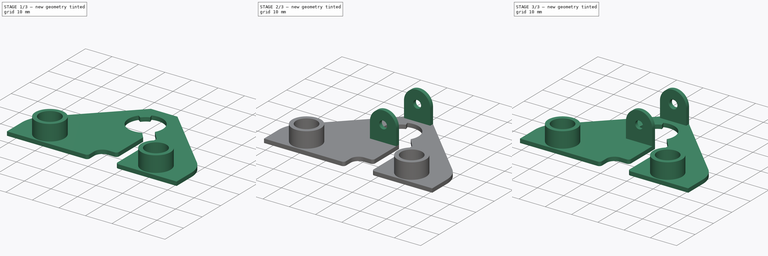
[diagram: build sequence overview — one tinted view per stage of 3, left to right]
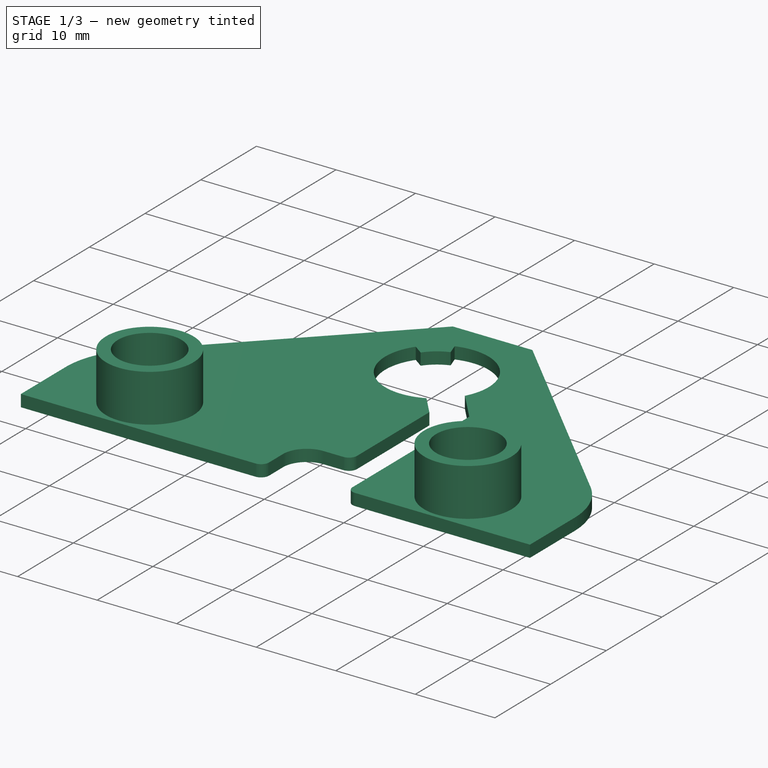
[diagram: stage 1 of 3 — iso view after this stage's code; geometry added in this stage tinted green]
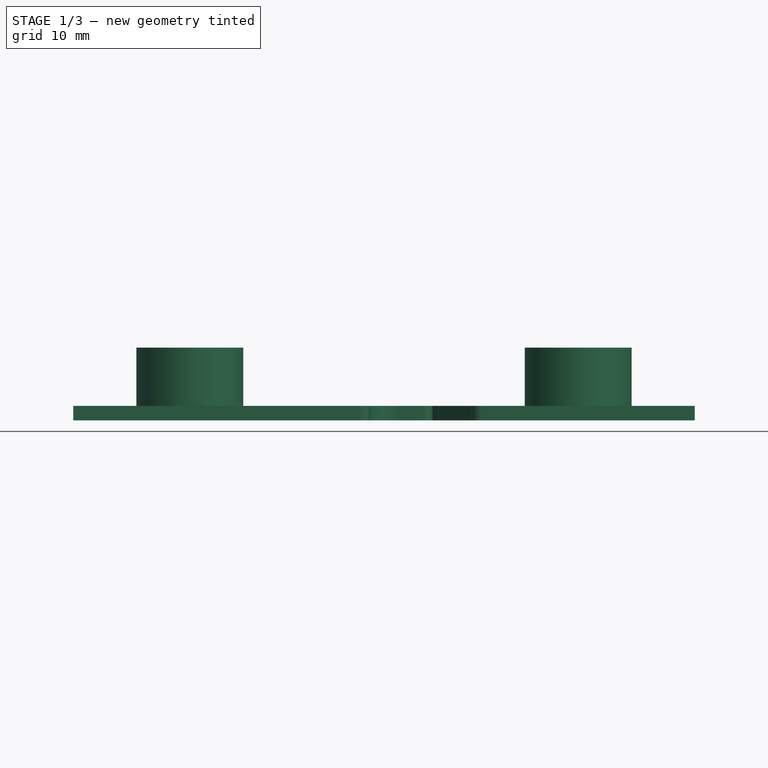
[diagram: stage 1 of 3 — front view after this stage's code; geometry added in this stage tinted green]
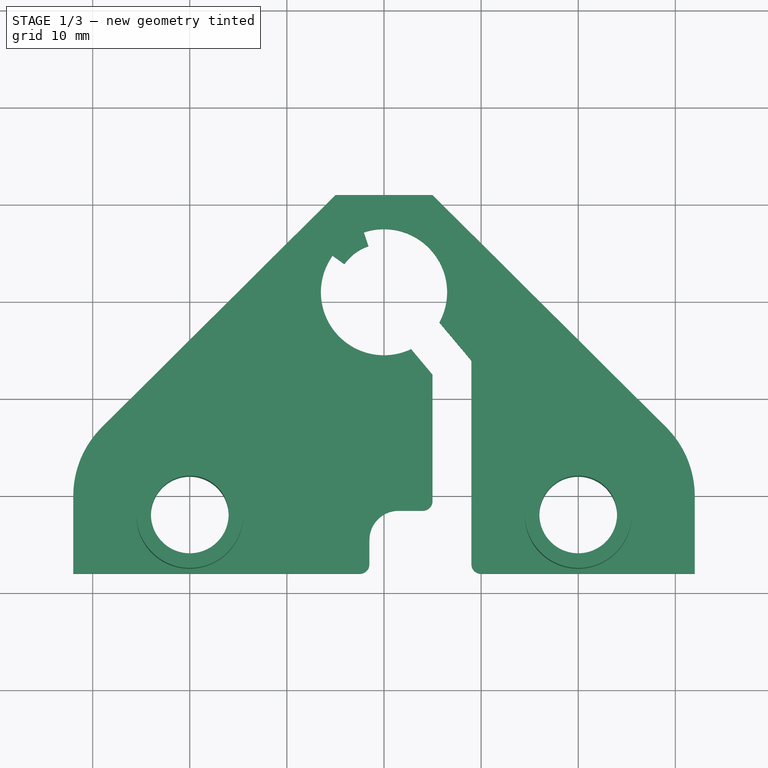
[diagram: stage 1 of 3 — top view after this stage's code; geometry added in this stage tinted green]
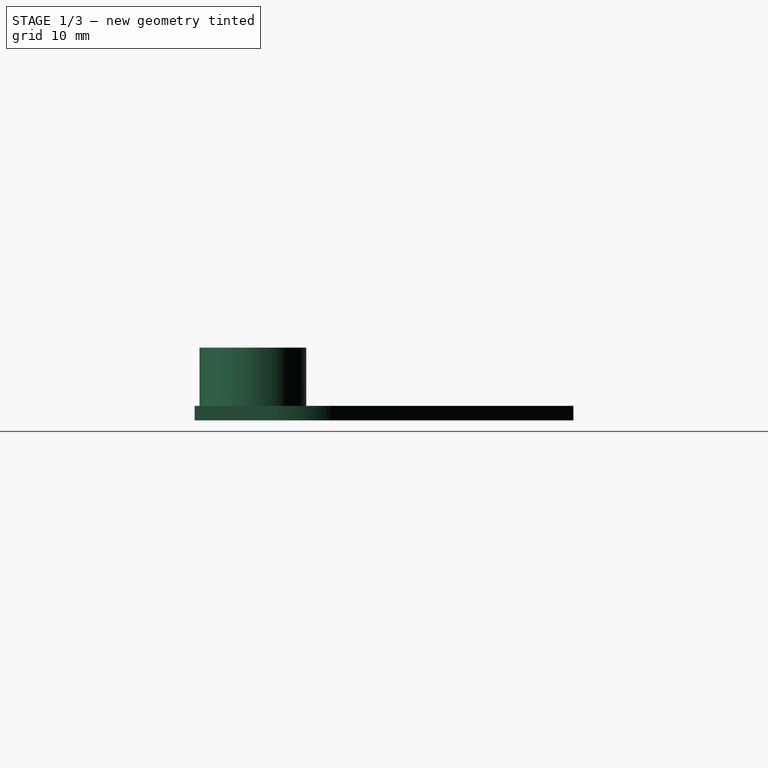
[diagram: stage 1 of 3 — right view after this stage's code; geometry added in this stage tinted green]
FCSTD DOCUMENT  (FreeCAD 0.17R13541 (Git))
Label: CableCareerNozzleHeader1
License: All rights reserved
LicenseURL: http://en.wikipedia.org/wiki/All_rights_reserved
objects: Sketcher::SketchObject×4, PartDesign::Pad×3, PartDesign::Fillet×2, PartDesign::Pocket×1, PartDesign::Body×1
note: 15 computed .brp shape members not serialized (recipe doc carries the construction recipe); baked Part::Feature solids carry a one-line shape summary decoded from their .brp

FEATURE [Sketcher::SketchObject] Sketch
  MapMode = 5
  Support = -> [XY_Plane]
  sketch-geometry (26):
    g0: LineSegment StartX=-32 StartY=-10 StartZ=0 EndX=-32 EndY=-18 EndZ=0
    g1: LineSegment StartX=32 StartY=-18 StartZ=0 EndX=32 EndY=-10 EndZ=0
    g2: LineSegment StartX=-5 StartY=21 StartZ=0 EndX=5 EndY=21 EndZ=0
    g3: ArcOfCircle CenterX=22 CenterY=-10 CenterZ=0 NormalX=0 NormalY=0 NormalZ=1 AngleXU=0 Radius=10 StartAngle=0 EndAngle=0.788361
    g4: ArcOfCircle CenterX=-22 CenterY=-10 CenterZ=0 NormalX=0 NormalY=0 NormalZ=1 AngleXU=0 Radius=10 StartAngle=2.35323 EndAngle=3.14159
    g5: Circle CenterX=-20 CenterY=-12 CenterZ=0 NormalX=0 NormalY=0 NormalZ=1 AngleXU=0 Radius=4
    g6: Circle CenterX=20 CenterY=-12 CenterZ=0 NormalX=0 NormalY=0 NormalZ=1 AngleXU=0 Radius=4
    g7: LineSegment StartX=-5 StartY=21 StartZ=0 EndX=-29.0501 EndY=-2.90802 EndZ=0
    g8: LineSegment StartX=5 StartY=21 StartZ=0 EndX=29.0501 EndY=-2.90802 EndZ=0
    g9: ArcOfCircle CenterX=1.5 CenterY=-14.5 CenterZ=0 NormalX=0 NormalY=0 NormalZ=1 AngleXU=0 Radius=3 StartAngle=1.5708 EndAngle=3.14159
    g10: LineSegment StartX=-32 StartY=-18 StartZ=0 EndX=-2.5 EndY=-18 EndZ=0
    g11: LineSegment StartX=-1.5 StartY=-17 StartZ=0 EndX=-1.5 EndY=-14.5 EndZ=0
    g12: LineSegment StartX=10 StartY=-18 StartZ=0 EndX=32 EndY=-18 EndZ=0
    g13: ArcOfCircle CenterX=-2.5 CenterY=-17 CenterZ=0 NormalX=0 NormalY=0 NormalZ=1 AngleXU=0 Radius=1 StartAngle=4.71239 EndAngle=6.28319
    g14: ArcOfCircle CenterX=10 CenterY=-17 CenterZ=0 NormalX=0 NormalY=0 NormalZ=1 AngleXU=0 Radius=1 StartAngle=3.14159 EndAngle=4.71239
    g15: LineSegment StartX=9 StartY=3.95588 StartZ=0 EndX=9 EndY=-17 EndZ=0
    g16: LineSegment StartX=5 StartY=-10.5 StartZ=0 EndX=5 EndY=2.5 EndZ=0
    g17: LineSegment StartX=1.5 StartY=-11.5 StartZ=0 EndX=4 EndY=-11.5 EndZ=0
    g18: LineSegment StartX=5.70423 StartY=7.88363 StartZ=0 EndX=9 EndY=3.95588 EndZ=0
    g19: LineSegment StartX=2.79272 StartY=5.13053 StartZ=0 EndX=5 EndY=2.5 EndZ=0
    g20: ArcOfCircle CenterX=4 CenterY=-10.5 CenterZ=0 NormalX=0 NormalY=0 NormalZ=1 AngleXU=0 Radius=1 StartAngle=4.71239 EndAngle=6.28319
    g21: ArcOfCircle CenterX=0 CenterY=11 CenterZ=0 NormalX=0 NormalY=0 NormalZ=1 AngleXU=0 Radius=6.5 StartAngle=5.78317 EndAngle=8.17947
    g22: ArcOfCircle CenterX=0 CenterY=11 CenterZ=0 NormalX=0 NormalY=0 NormalZ=1 AngleXU=0 Radius=6.5 StartAngle=2.52295 EndAngle=5.15649
    g23: ArcOfCircle CenterX=0 CenterY=11 CenterZ=0 NormalX=0 NormalY=0 NormalZ=1 AngleXU=0 Radius=5 StartAngle=1.89628 EndAngle=2.52295
    g24: LineSegment StartX=-5.29535 StartY=14.7695 StartZ=0 EndX=-4.07335 EndY=13.8996 EndZ=0
    g25: LineSegment StartX=-2.0785 StartY=17.1587 StartZ=0 EndX=-1.59884 EndY=15.7375 EndZ=0
  constraints (75):
    c: Vertical(g0)
    c: Vertical(g1)
    c: DistanceX(g0,g1) = 64
    c: DistanceX(g0,g-1) = 32
    c: DistanceY(g0,g-1) = 18
    c: Horizontal(g2)
    c: DistanceX(g2,g2) = 10
    c: Tangent(g1,g3) = -1.5708
    c: Tangent(g0,g4) = -1.5708
    c: Radius(g4) = 10
    c: Radius(g3) = 10
    c: Distance(g-1,g2) = 21
    c: DistanceX(g-1,g2) = 5
    c: Coincident(g7,g2)
    c: Coincident(g8,g2)
    c: Tangent(g4,g7) = -1.5708
    c: Tangent(g3,g8) = 1.5708
    c: DistanceY(g0,g-1) = 10
    c: DistanceY(g1,g-1) = 10
    c: DistanceX(g0,g5) = 12
    c: DistanceX(g6,g1) = 12
    c: DistanceY(g6,g1) = 2
    c: DistanceY(g5,g0) = 2
    c: Radius(g5) = 4
    c: Radius(g6) = 4
    c: DistanceY(g1,g-1) = 18
    c: DistanceX(g9,g6) = 18.5
    c: DistanceY(g9,g6) = 2.5
    c: Coincident(g12,g1)
    c: Horizontal(g12)
    c: Horizontal(g10)
    c: Vertical(g11)
    c: Coincident(g10,g0)
    c: Coincident(g11,g9)
    c: Angle(g9) = 1.5708
    c: Radius(g9) = 3
    c: Tangent(g10,g13) = -1.5708
    c: Tangent(g11,g13) = -1.5708
    c: Tangent(g12,g14) = -1.5708
    c: Radius(g13) = 1
    c: Radius(g14) = 1
    c: DistanceY(g9,g9) = 0
    c: Vertical(g15)
    c: Vertical(g16)
    c: DistanceX(g-1,g16) = 5
    c: DistanceX(g16,g15) = 4
    c: Horizontal(g17)
    c: Coincident(g17,g9)
    c: Tangent(g15,g14) = -1.5708
    c: Parallel(g19,g18)
    c: Angle(g19,g-1) = 0.872665
    c: Coincident(g16,g19)
    c: Distance(g16,g18) = 4
    c: Coincident(g15,g18)
    c: DistanceY(g-1,g16) = 2.5
    c: Tangent(g17,g20) = -1.5708
    c: Tangent(g16,g20) = -1.5708
    c: Radius(g20) = 1
    c: DistanceX(g2,g21) = 5
    c: DistanceY(g21,g2) = 10
    c: Coincident(g21,g18)
    c: Radius(g21) = 6.5
    c: PointOnObject(g21,g18)
    c: Coincident(g22,g21)
    c: Radius(g22) = 6.5
    c: Coincident(g19,g22)
    c: PointOnObject(g22,g19)
    c: Coincident(g23,g21)
    c: Radius(g23) = 5
    c: Perpendicular(g22,g24)
    c: Perpendicular(g21,g25)
    c: Coincident(g22,g24)
    c: Coincident(g23,g24)
    c: Coincident(g25,g23)
    c: Coincident(g25,g21)
FEATURE [PartDesign::Pad] Pad
  Length = 1.5
  Length2 = 100
  Profile = -> Sketch
  Type = 0
FEATURE [Sketcher::SketchObject] Sketch007
  ExternalGeometry = -> [Pad]
  MapMode = 5
  Placement = pos=(0,0,1.5) rot=(0,0,1;0rad)
  Support = -> [Pad]
  sketch-geometry (4):
    g0: Circle CenterX=-20 CenterY=-12 CenterZ=0 NormalX=0 NormalY=0 NormalZ=1 AngleXU=0 Radius=5.5
    g1: Circle CenterX=-20 CenterY=-12 CenterZ=0 NormalX=0 NormalY=0 NormalZ=1 AngleXU=0 Radius=4
    g2: Circle CenterX=20 CenterY=-12 CenterZ=0 NormalX=0 NormalY=0 NormalZ=1 AngleXU=0 Radius=4
    g3: Circle CenterX=20 CenterY=-12 CenterZ=0 NormalX=0 NormalY=0 NormalZ=1 AngleXU=0 Radius=5.5
  constraints (8):
    c: Coincident(g3,g2)
    c: Coincident(g2,g-4)
    c: Coincident(g-3,g1)
    c: Coincident(g-3,g0)
    c: Radius(g1) = 4
    c: Radius(g0) = 5.5
    c: Radius(g2) = 4
    c: Radius(g3) = 5.5
FEATURE [PartDesign::Pad] Pad001
  BaseFeature = -> Pad
  Length = 6
  Length2 = 100
  Profile = -> Sketch007
  Type = 0
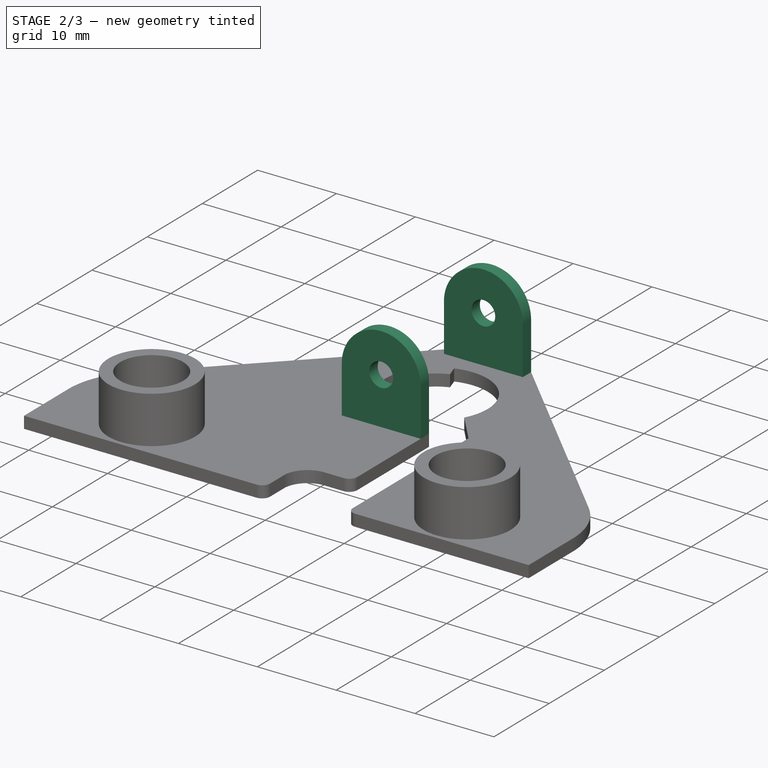
[diagram: stage 2 of 3 — iso view after this stage's code; geometry added in this stage tinted green]
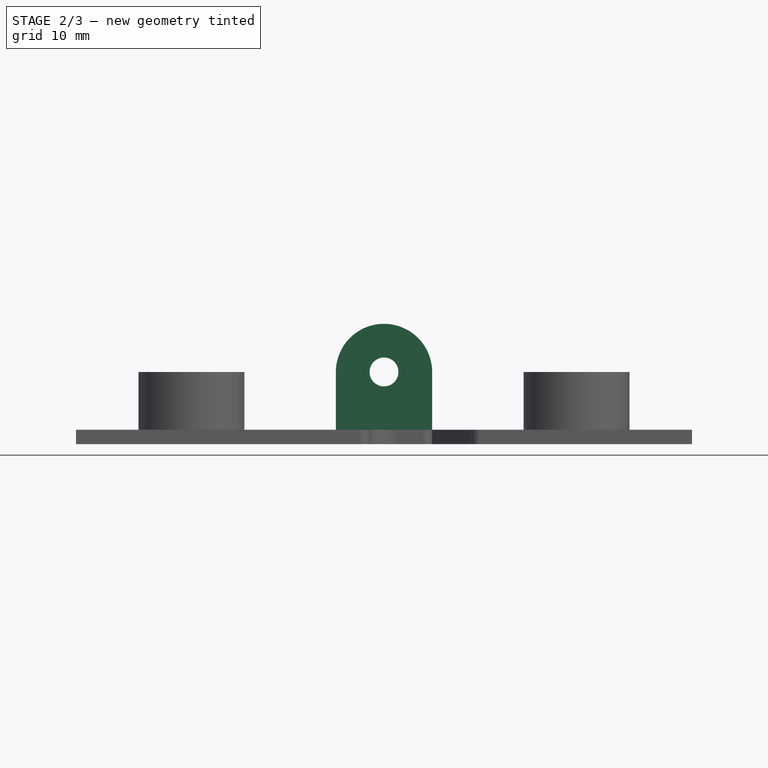
[diagram: stage 2 of 3 — front view after this stage's code; geometry added in this stage tinted green]
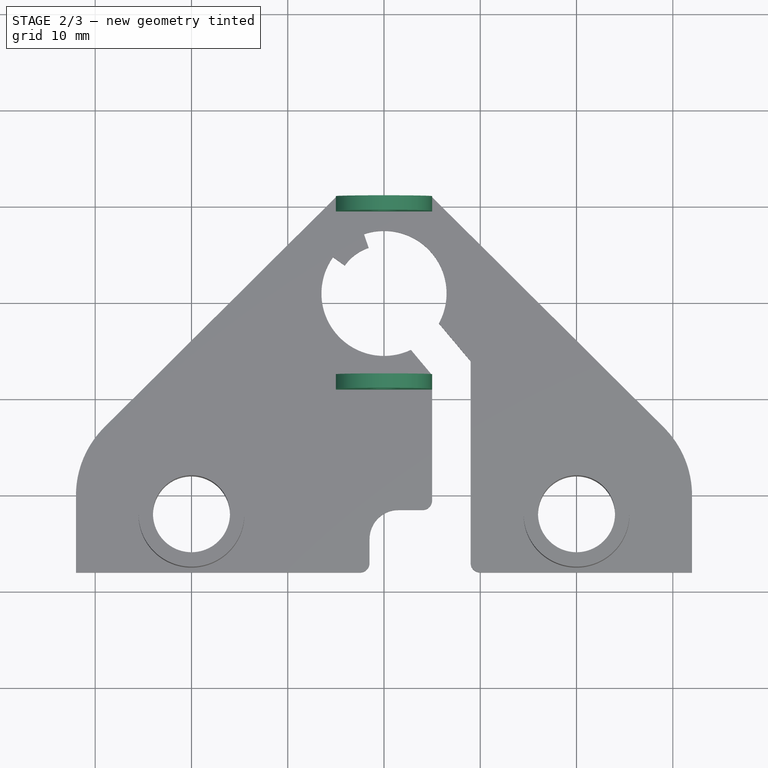
[diagram: stage 2 of 3 — top view after this stage's code; geometry added in this stage tinted green]
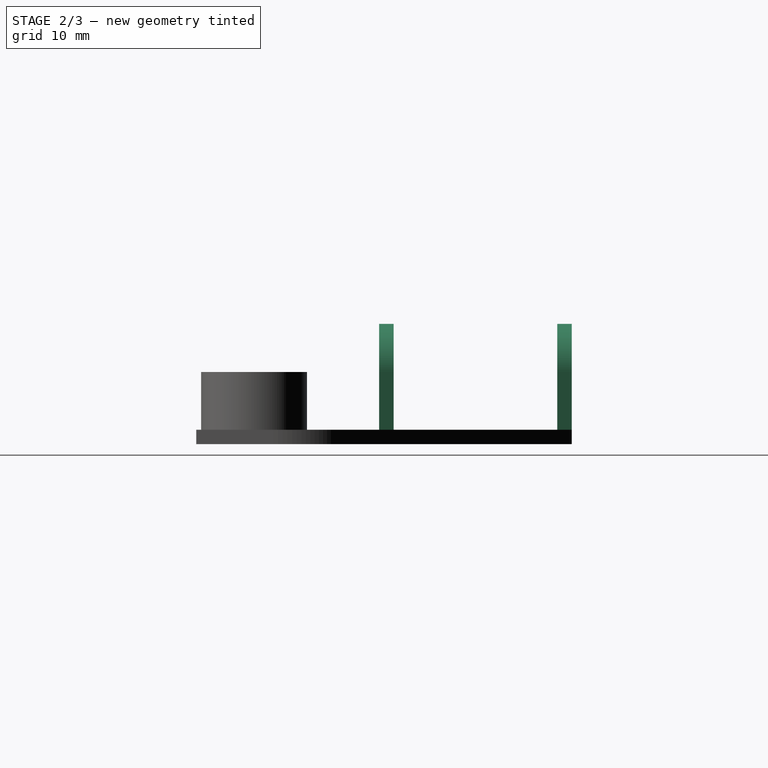
[diagram: stage 2 of 3 — right view after this stage's code; geometry added in this stage tinted green]
FEATURE [Sketcher::SketchObject] Sketch008
  ExternalGeometry = -> [Pad001]
  MapMode = 5
  Placement = pos=(0,0,1.5) rot=(0,0,1;0rad)
  Support = -> [Pad001]
  sketch-geometry (8):
    g0: LineSegment StartX=-5 StartY=21 StartZ=0 EndX=5 EndY=21 EndZ=0
    g1: LineSegment StartX=5 StartY=21 StartZ=0 EndX=5 EndY=19.5 EndZ=0
    g2: LineSegment StartX=5 StartY=19.5 StartZ=0 EndX=-5 EndY=19.5 EndZ=0
    g3: LineSegment StartX=-5 StartY=19.5 StartZ=0 EndX=-5 EndY=21 EndZ=0
    g4: LineSegment StartX=-5 StartY=2.5 StartZ=0 EndX=5 EndY=2.5 EndZ=0
    g5: LineSegment StartX=5 StartY=2.5 StartZ=0 EndX=5 EndY=1 EndZ=0
    g6: LineSegment StartX=5 StartY=1 StartZ=0 EndX=-5 EndY=1 EndZ=0
    g7: LineSegment StartX=-5 StartY=1 StartZ=0 EndX=-5 EndY=2.5 EndZ=0
  constraints (23):
    c: Coincident(g0,g1)
    c: Coincident(g1,g2)
    c: Coincident(g2,g3)
    c: Coincident(g3,g0)
    c: Horizontal(g0)
    c: Horizontal(g2)
    c: Vertical(g1)
    c: Vertical(g3)
    c: Coincident(g0,g-3)
    c: Coincident(g-3,g0)
    c: DistanceY(g3,g3) = 1.5
    c: Coincident(g4,g5)
    c: Coincident(g5,g6)
    c: Coincident(g6,g7)
    c: Coincident(g7,g4)
    c: Horizontal(g4)
    c: Horizontal(g6)
    c: Vertical(g5)
    c: Vertical(g7)
    c: PointOnObject(g4,g1)
    c: PointOnObject(g4,g3)
    c: DistanceY(g7,g7) = 1.5
    c: Distance(g-1,g6) = 1
FEATURE [PartDesign::Pad] Pad002
  BaseFeature = -> Pad001
  Length = 11
  Length2 = 100
  Profile = -> Sketch008
  Type = 0
FEATURE [Sketcher::SketchObject] Sketch009
  ExternalGeometry = -> [Pad002]
  MapMode = 5
  Placement = pos=(0,21,0) rot=(0,0.707107,0.707107;3.14159rad)
  Support = -> [Pad002]
  sketch-geometry (5):
    g0: ArcOfCircle CenterX=0 CenterY=7.5 CenterZ=0 NormalX=0 NormalY=0 NormalZ=1 AngleXU=0 Radius=5 StartAngle=6.28319 EndAngle=9.42477
    g1: LineSegment StartX=-5 StartY=13.5 StartZ=0 EndX=5 EndY=13.5 EndZ=0
    g2: LineSegment StartX=5 StartY=13.5 StartZ=0 EndX=5 EndY=7.5 EndZ=0
    g3: LineSegment StartX=-5 StartY=7.50002 StartZ=0 EndX=-5 EndY=13.5 EndZ=0
    g4: Circle CenterX=0 CenterY=7.5 CenterZ=0 NormalX=0 NormalY=0 NormalZ=1 AngleXU=0 Radius=1.5
  constraints (15):
    c: PointOnObject(g0,g-2)
    c: PointOnObject(g0,g-3)
    c: Tangent(g0,g-3)
    c: PointOnObject(g0,g-5)
    c: Tangent(g0,g-4)
    c: Coincident(g1,g2)
    c: Coincident(g3,g1)
    c: Horizontal(g1)
    c: Vertical(g2)
    c: Vertical(g3)
    c: Coincident(g2,g0)
    c: Coincident(g0,g3)
    c: DistanceY(g3,g3) = 6
    c: Coincident(g0,g4)
    c: Radius(g4) = 1.5
FEATURE [PartDesign::Pocket] Pocket
  BaseFeature = -> Pad002
  Length = 20
  Length2 = 100
  Profile = -> Sketch009
  Type = 0
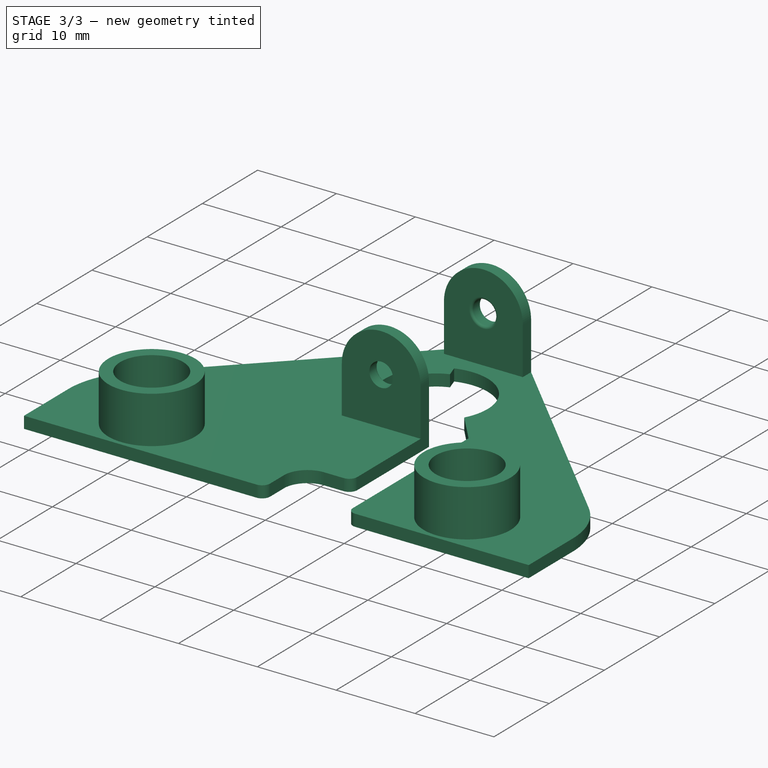
[diagram: stage 3 of 3 — iso view after this stage's code; geometry added in this stage tinted green]
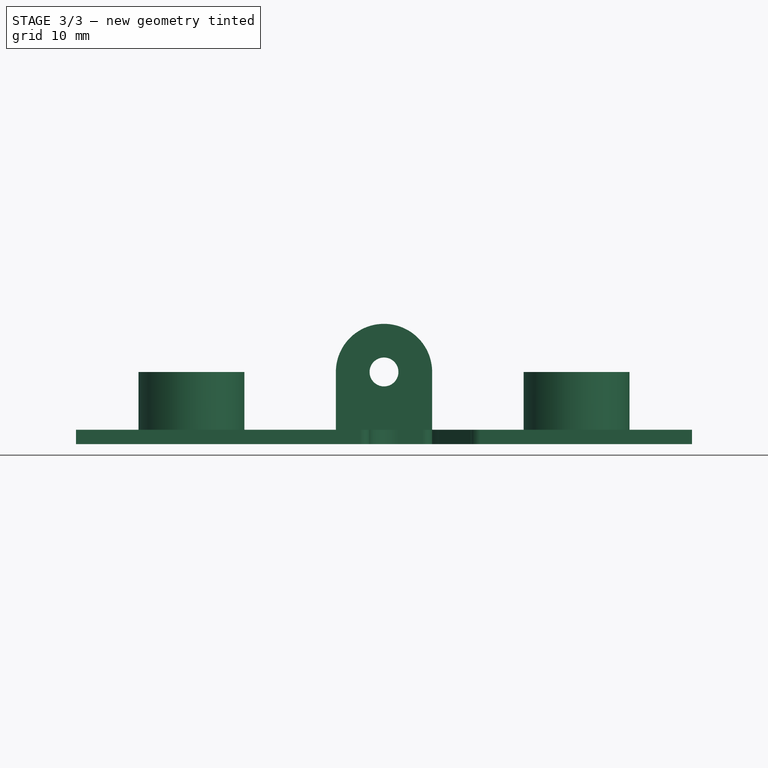
[diagram: stage 3 of 3 — front view after this stage's code; geometry added in this stage tinted green]
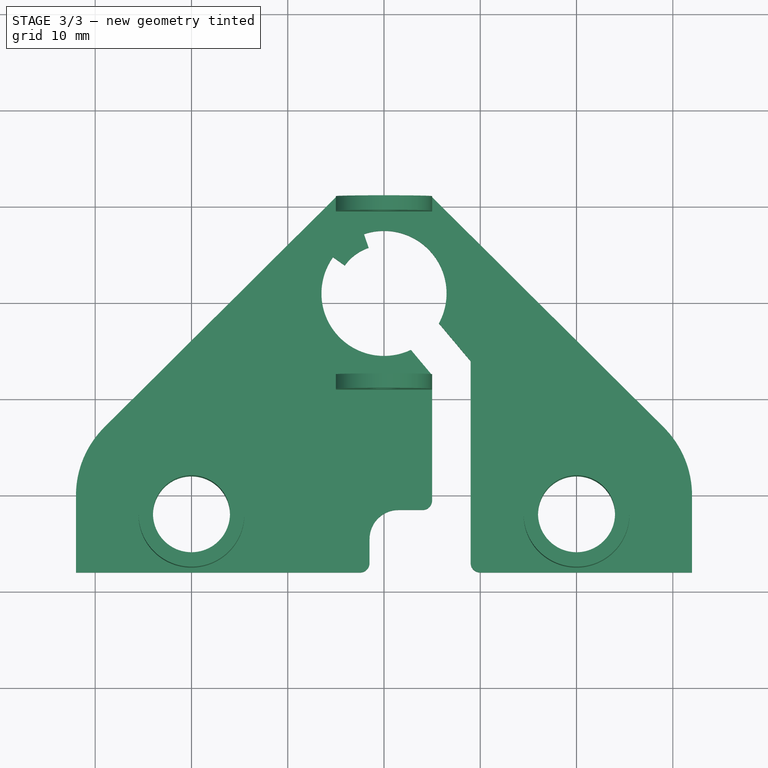
[diagram: stage 3 of 3 — top view after this stage's code; geometry added in this stage tinted green]
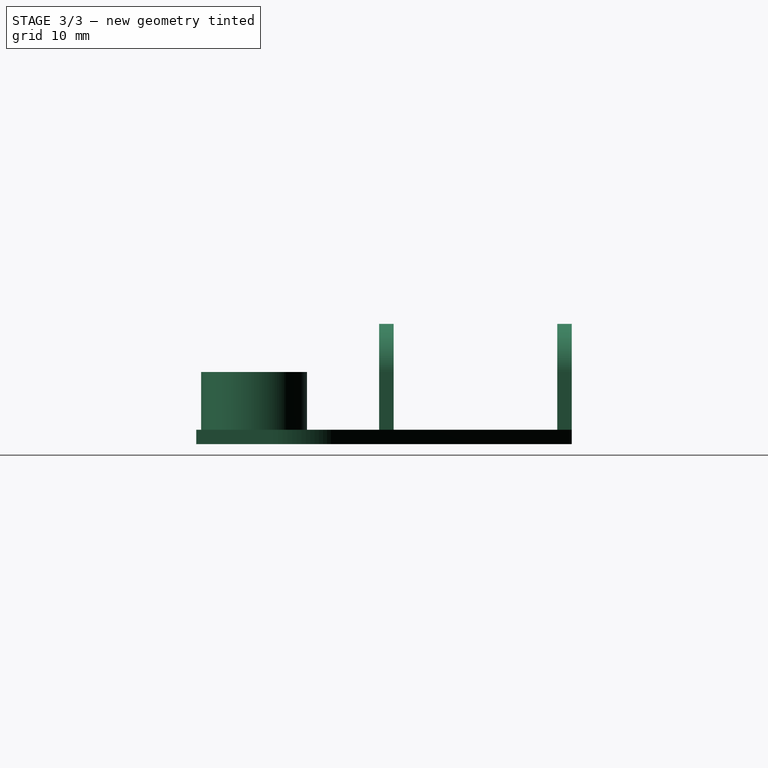
[diagram: stage 3 of 3 — right view after this stage's code; geometry added in this stage tinted green]
FEATURE [PartDesign::Fillet] Fillet
  Base = -> Pocket [Edge110]
  BaseFeature = -> Pocket
  Radius = 0.3
FEATURE [PartDesign::Fillet] Fillet001
  Base = -> Fillet [Edge55]
  BaseFeature = -> Fillet
  Radius = 0.3
FEATURE [PartDesign::Body] Body
  Group = -> [Sketch,Pad,Sketch007,Pad001,Sketch008,Pad002,Sketch009,Pocket,Fillet,Fillet001]
  Origin = -> Origin
  Tip = -> Fillet001
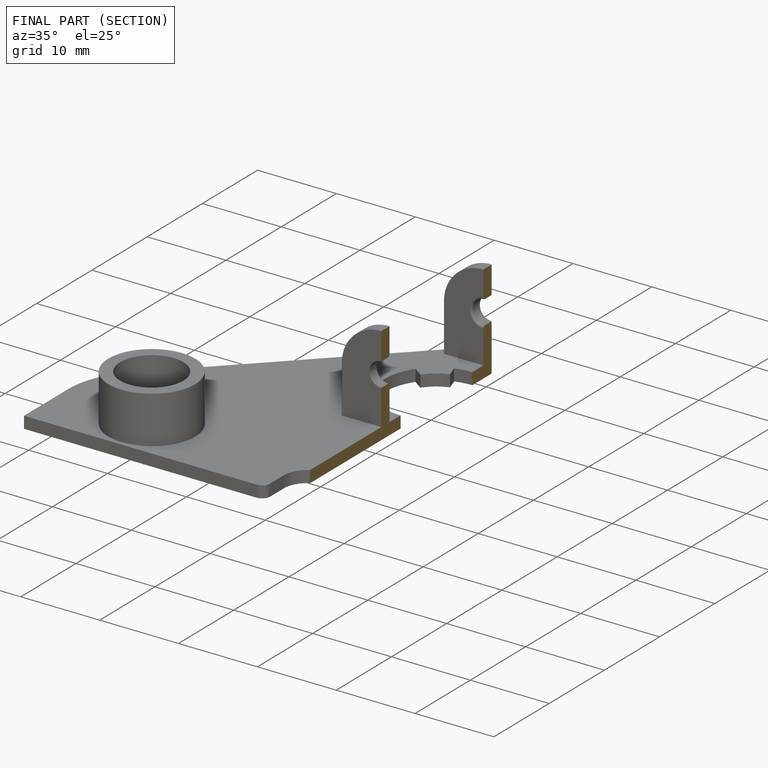
[diagram: finished part — half-section view (interior)]
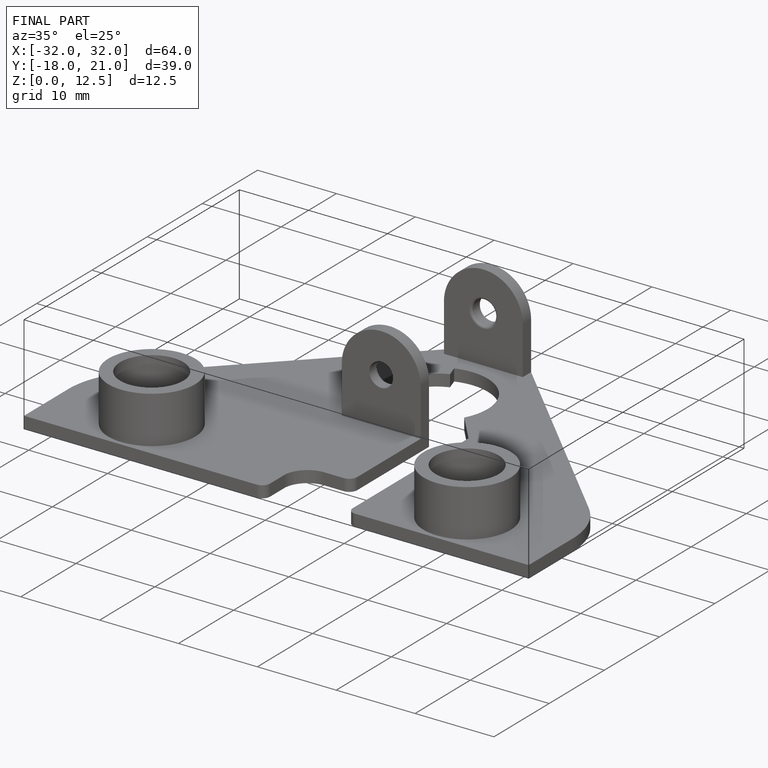
[diagram: finished part — iso view with bounding-box wireframe]
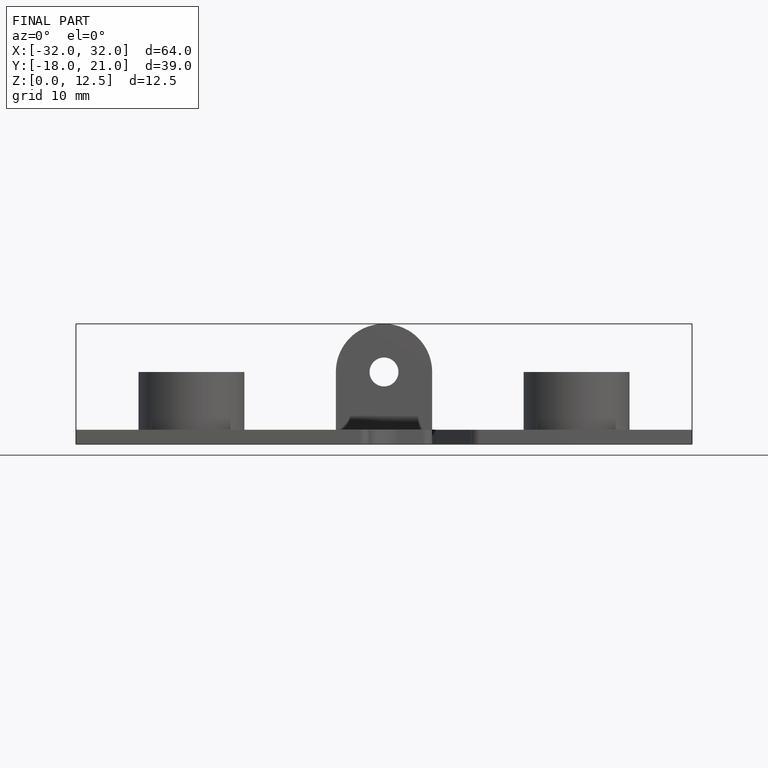
[diagram: finished part — front view with bounding-box wireframe]
